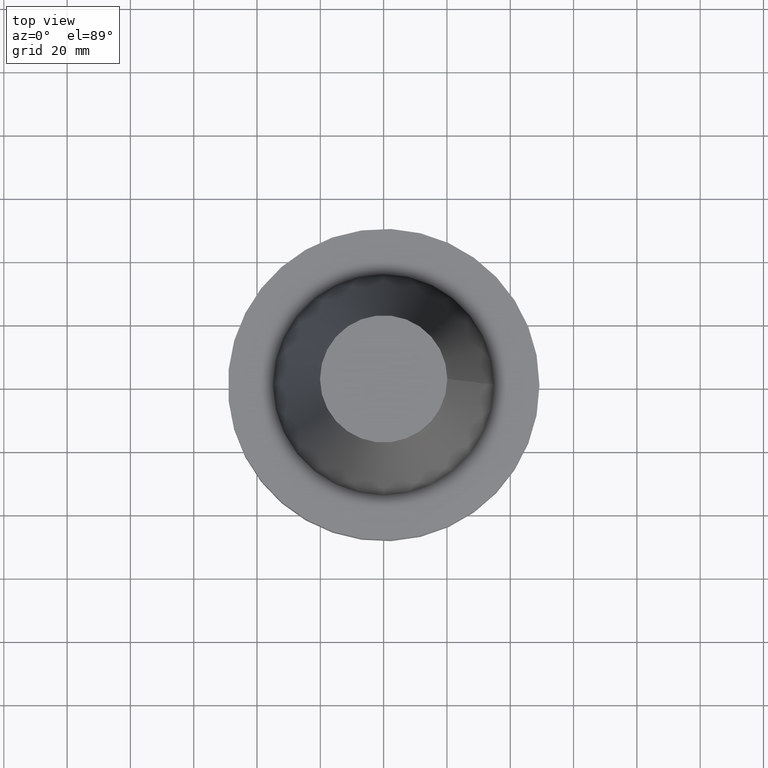
[diagram: clean part render]
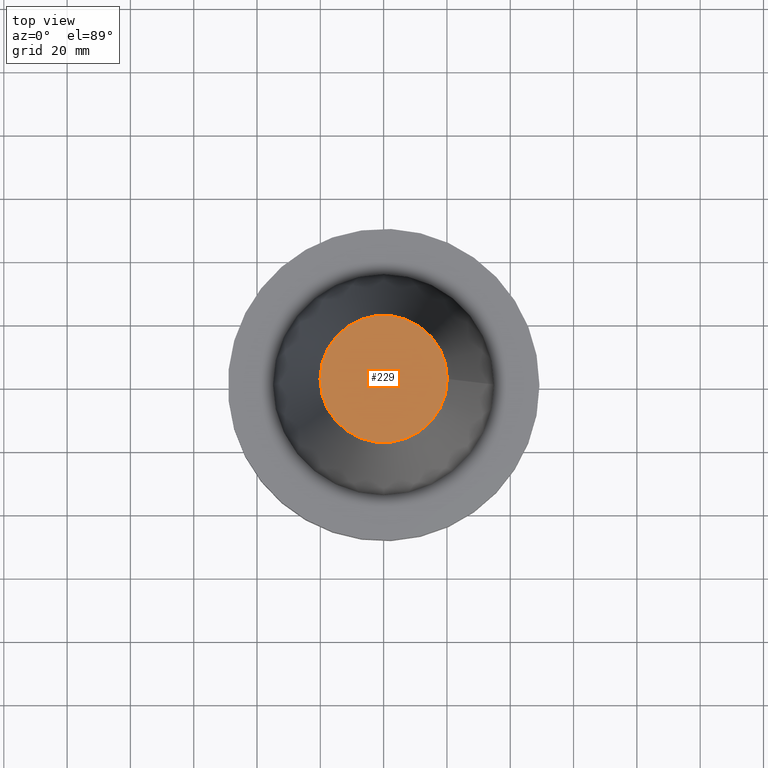
[diagram: same view with one face highlighted and labeled with its STEP entity id]
A machine part, top view. The second image highlights one B-rep face of the part: STEP entity #229.
In plain terms, the highlighted planar face has unit normal (0, 0, -1).
Its self-contained STEP definition (entity closure, byte-faithful):
#4 = CARTESIAN_POINT ( 'NONE',  ( 20.10819343178871321, 0.000000000000000000, 101.5999999999999801 ) ) ;
#40 = DIRECTION ( 'NONE',  ( 0.000000000000000000, 0.000000000000000000, -1.000000000000000000 ) ) ;
#45 = DIRECTION ( 'NONE',  ( 1.000000000000000000, 0.000000000000000000, 0.000000000000000000 ) ) ;
#50 = EDGE_CURVE ( 'NONE', #280, #280, #220, .T. ) ;
#56 = AXIS2_PLACEMENT_3D ( 'NONE', #130, #40, #164 ) ;
#91 = PLANE ( 'NONE',  #56 ) ;
#110 = CARTESIAN_POINT ( 'NONE',  ( 0.000000000000000000, 0.000000000000000000, 101.5999999999999801 ) ) ;
#130 = CARTESIAN_POINT ( 'NONE',  ( 0.000000000000000000, 20.10819343178871321, 101.5999999999999943 ) ) ;
#161 = FACE_OUTER_BOUND ( 'NONE', #212, .T. ) ;
#164 = DIRECTION ( 'NONE',  ( -1.000000000000000000, 0.000000000000000000, -0.000000000000000000 ) ) ;
#171 = DIRECTION ( 'NONE',  ( -0.000000000000000000, -0.000000000000000000, 1.000000000000000000 ) ) ;
#182 = ORIENTED_EDGE ( 'NONE', *, *, #50, .T. ) ;
#212 = EDGE_LOOP ( 'NONE', ( #182 ) ) ;
#220 = CIRCLE ( 'NONE', #359, 20.10819343178871321 ) ;
#229 = ADVANCED_FACE ( 'NONE', ( #161 ), #91, .F. ) ;
#280 = VERTEX_POINT ( 'NONE', #4 ) ;
#359 = AXIS2_PLACEMENT_3D ( 'NONE', #110, #171, #45 ) ;